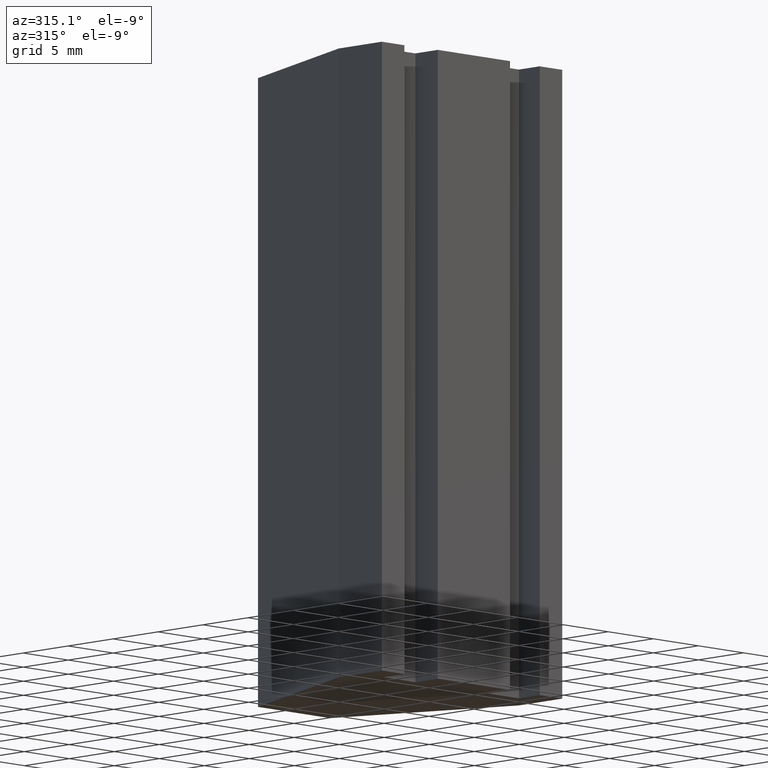
[diagram: clean part render]
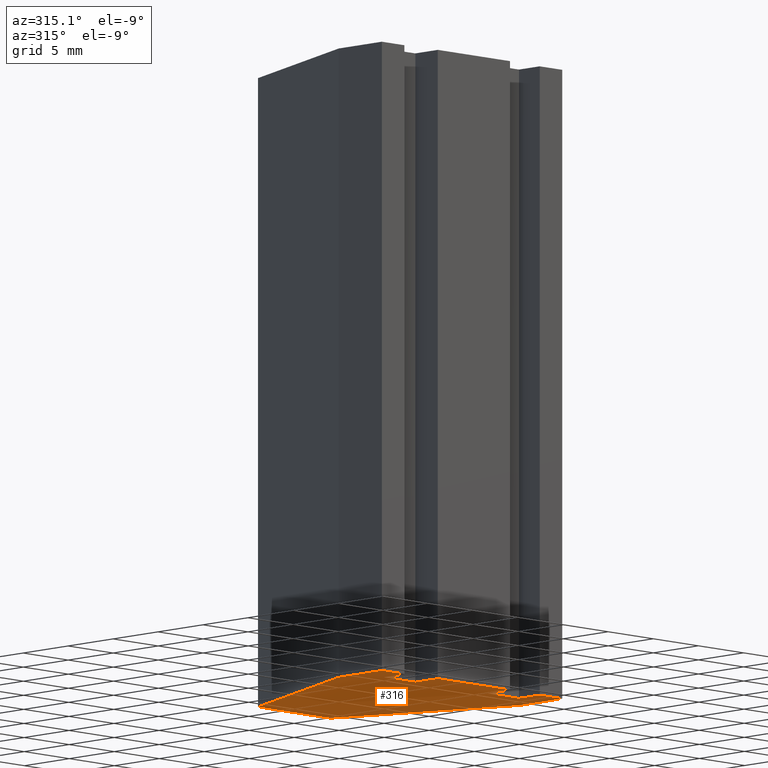
[diagram: same view with one face highlighted and labeled with its STEP entity id]
A machine part, auxiliary view. The second image highlights one B-rep face of the part: STEP entity #316.
In plain terms, the highlighted planar face has unit normal (0, 0, -1).
Its self-contained STEP definition (entity closure, byte-faithful):
#30=FACE_OUTER_BOUND('',#46,.T.);
#46=EDGE_LOOP('',(#271,#272,#273,#274,#275,#276,#277,#278,#279,#280,#281,
#282,#283,#284));
#49=LINE('',#437,#91);
#52=LINE('',#443,#94);
#55=LINE('',#449,#97);
#58=LINE('',#455,#100);
#61=LINE('',#461,#103);
#64=LINE('',#467,#106);
#67=LINE('',#473,#109);
#70=LINE('',#479,#112);
#73=LINE('',#485,#115);
#76=LINE('',#491,#118);
#79=LINE('',#497,#121);
#82=LINE('',#503,#124);
#85=LINE('',#509,#127);
#88=LINE('',#513,#130);
#91=VECTOR('',#359,10.);
#94=VECTOR('',#364,10.);
#97=VECTOR('',#369,10.);
#100=VECTOR('',#374,10.);
#103=VECTOR('',#379,10.);
#106=VECTOR('',#384,10.);
#109=VECTOR('',#389,10.);
#112=VECTOR('',#394,10.);
#115=VECTOR('',#399,10.);
#118=VECTOR('',#404,10.);
#121=VECTOR('',#409,10.);
#124=VECTOR('',#414,10.);
#127=VECTOR('',#419,10.);
#130=VECTOR('',#424,10.);
#133=VERTEX_POINT('',#434);
#134=VERTEX_POINT('',#436);
#136=VERTEX_POINT('',#442);
#138=VERTEX_POINT('',#448);
#140=VERTEX_POINT('',#454);
#142=VERTEX_POINT('',#460);
#144=VERTEX_POINT('',#466);
#146=VERTEX_POINT('',#472);
#148=VERTEX_POINT('',#478);
#150=VERTEX_POINT('',#484);
#152=VERTEX_POINT('',#490);
#154=VERTEX_POINT('',#496);
#156=VERTEX_POINT('',#502);
#158=VERTEX_POINT('',#508);
#161=EDGE_CURVE('',#134,#133,#49,.T.);
#164=EDGE_CURVE('',#136,#134,#52,.T.);
#167=EDGE_CURVE('',#138,#136,#55,.T.);
#170=EDGE_CURVE('',#140,#138,#58,.T.);
#173=EDGE_CURVE('',#142,#140,#61,.T.);
#176=EDGE_CURVE('',#144,#142,#64,.T.);
#179=EDGE_CURVE('',#146,#144,#67,.T.);
#182=EDGE_CURVE('',#148,#146,#70,.T.);
#185=EDGE_CURVE('',#150,#148,#73,.T.);
#188=EDGE_CURVE('',#152,#150,#76,.T.);
#191=EDGE_CURVE('',#154,#152,#79,.T.);
#194=EDGE_CURVE('',#156,#154,#82,.T.);
#197=EDGE_CURVE('',#158,#156,#85,.T.);
#200=EDGE_CURVE('',#133,#158,#88,.T.);
#271=ORIENTED_EDGE('',*,*,#200,.T.);
#272=ORIENTED_EDGE('',*,*,#197,.T.);
#273=ORIENTED_EDGE('',*,*,#194,.T.);
#274=ORIENTED_EDGE('',*,*,#191,.T.);
#275=ORIENTED_EDGE('',*,*,#188,.T.);
#276=ORIENTED_EDGE('',*,*,#185,.T.);
#277=ORIENTED_EDGE('',*,*,#182,.T.);
#278=ORIENTED_EDGE('',*,*,#179,.T.);
#279=ORIENTED_EDGE('',*,*,#176,.T.);
#280=ORIENTED_EDGE('',*,*,#173,.T.);
#281=ORIENTED_EDGE('',*,*,#170,.T.);
#282=ORIENTED_EDGE('',*,*,#167,.T.);
#283=ORIENTED_EDGE('',*,*,#164,.T.);
#284=ORIENTED_EDGE('',*,*,#161,.T.);
#300=PLANE('',#352);
#316=ADVANCED_FACE('',(#30),#300,.T.);
#352=AXIS2_PLACEMENT_3D('',#515,#427,#428);
#359=DIRECTION('',(-1.,-4.44089209850063E-16,0.));
#364=DIRECTION('',(0.,-1.,0.));
#369=DIRECTION('',(-1.,-1.58603289232166E-16,0.));
#374=DIRECTION('',(0.,1.,0.));
#379=DIRECTION('',(-1.,-1.38777878078145E-16,0.));
#384=DIRECTION('',(-1.4210854715202E-14,-1.,0.));
#389=DIRECTION('',(-1.,0.,0.));
#394=DIRECTION('',(7.72329060608804E-15,1.,0.));
#399=DIRECTION('',(-1.,0.,0.));
#404=DIRECTION('',(-4.62592926927149E-16,-1.,0.));
#409=DIRECTION('',(0.371390676354104,-0.928476690885259,0.));
#414=DIRECTION('',(1.,1.11022302462516E-15,0.));
#419=DIRECTION('',(0.371390676354104,0.928476690885259,0.));
#424=DIRECTION('',(-2.31296463463574E-16,1.,0.));
#427=DIRECTION('center_axis',(0.,0.,-1.));
#428=DIRECTION('ref_axis',(-1.,0.,0.));
#434=CARTESIAN_POINT('',(-9.99999999999998,0.2,-50.));
#436=CARTESIAN_POINT('',(-7.49999999999998,0.200000000000001,-50.));
#437=CARTESIAN_POINT('',(-9.99999999999998,0.2,-50.));
#442=CARTESIAN_POINT('',(-7.49999999999998,2.5,-50.));
#443=CARTESIAN_POINT('',(-7.49999999999998,0.200000000000001,-50.));
#448=CARTESIAN_POINT('',(-4.,2.5,-50.));
#449=CARTESIAN_POINT('',(-7.49999999999998,2.5,-50.));
#454=CARTESIAN_POINT('',(-4.,0.,-50.));
#455=CARTESIAN_POINT('',(-4.,2.5,-50.));
#460=CARTESIAN_POINT('',(4.,1.11022302462516E-15,-50.));
#461=CARTESIAN_POINT('',(-4.,0.,-50.));
#466=CARTESIAN_POINT('',(4.00000000000003,2.5,-50.));
#467=CARTESIAN_POINT('',(4.,1.11022302462516E-15,-50.));
#472=CARTESIAN_POINT('',(7.50000000000002,2.5,-50.));
#473=CARTESIAN_POINT('',(4.00000000000003,2.5,-50.));
#478=CARTESIAN_POINT('',(7.5,0.200000000000002,-50.));
#479=CARTESIAN_POINT('',(7.50000000000002,2.5,-50.));
#484=CARTESIAN_POINT('',(10.,0.200000000000002,-50.));
#485=CARTESIAN_POINT('',(7.5,0.200000000000002,-50.));
#490=CARTESIAN_POINT('',(10.,5.,-50.));
#491=CARTESIAN_POINT('',(10.,0.200000000000002,-50.));
#496=CARTESIAN_POINT('',(4.00000000000002,20.,-50.));
#497=CARTESIAN_POINT('',(10.,5.,-50.));
#502=CARTESIAN_POINT('',(-3.99999999999998,20.,-50.));
#503=CARTESIAN_POINT('',(4.00000000000002,20.,-50.));
#508=CARTESIAN_POINT('',(-9.99999999999998,5.,-50.));
#509=CARTESIAN_POINT('',(-3.99999999999998,20.,-50.));
#513=CARTESIAN_POINT('',(-9.99999999999998,5.,-50.));
#515=CARTESIAN_POINT('Origin',(1.66533453693773E-14,10.,-50.));